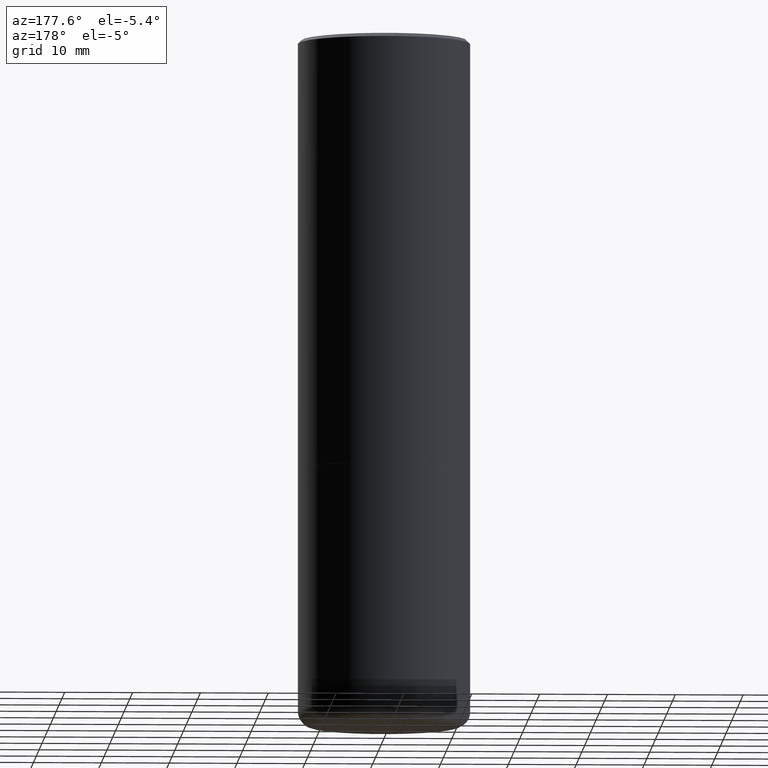
[diagram: clean part render]
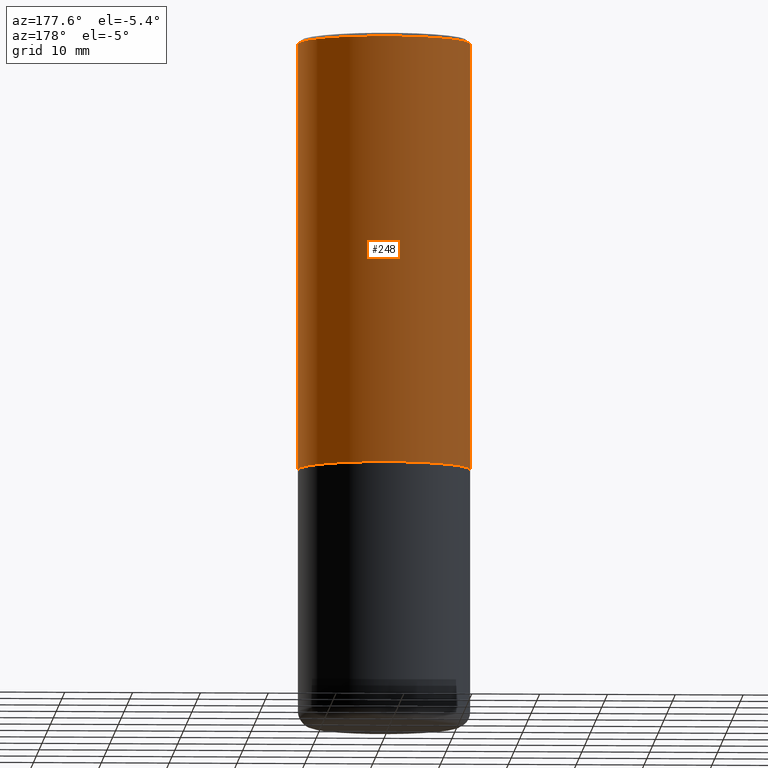
[diagram: same view with one face highlighted and labeled with its STEP entity id]
A machine part, auxiliary view. The second image highlights one B-rep face of the part: STEP entity #248.
In plain terms, the highlighted cylindrical surface (partial cylindrical patch) has radius 12.7 mm, axis along (-0, 0, 1).
Its self-contained STEP definition (entity closure, byte-faithful):
#19 = DIRECTION ( 'NONE',  ( 1.000000000000000000, -6.982962677686267499E-15, 4.876176775795936353E-29 ) ) ;
#24 = CARTESIAN_POINT ( 'NONE',  ( 0.4999999999999998335, -3.491481338843132566E-15, 2.438088387897967336E-29 ) ) ;
#37 = ORIENTED_EDGE ( 'NONE', *, *, #311, .T. ) ;
#42 = CIRCLE ( 'NONE', #285, 0.5000000000000000000 ) ;
#53 = EDGE_CURVE ( 'NONE', #391, #155, #396, .T. ) ;
#72 = DIRECTION ( 'NONE',  ( -2.445468806185136597E-29, 3.491481338843145583E-15, 1.000000000000000000 ) ) ;
#73 = CARTESIAN_POINT ( 'NONE',  ( 0.4999999999999996669, -3.500078625662626318E-15, -0.02000000000000002123 ) ) ;
#79 = CARTESIAN_POINT ( 'NONE',  ( -0.5000000000000000000, -8.448070674724403070E-16, -2.499000000000000110 ) ) ;
#83 = EDGE_CURVE ( 'NONE', #187, #155, #357, .T. ) ;
#115 = CARTESIAN_POINT ( 'NONE',  ( 0.000000000000000000, 0.000000000000000000, 0.000000000000000000 ) ) ;
#118 = ORIENTED_EDGE ( 'NONE', *, *, #53, .T. ) ;
#133 = AXIS2_PLACEMENT_3D ( 'NONE', #374, #378, #413 ) ;
#135 = CARTESIAN_POINT ( 'NONE',  ( -0.4999999999999996669, 3.421651712066268085E-15, -0.02000000000000002123 ) ) ;
#137 = DIRECTION ( 'NONE',  ( 1.000000000000000000, -6.982962677686265133E-15, 0.000000000000000000 ) ) ;
#142 = CARTESIAN_POINT ( 'NONE',  ( -0.4999999999999998335, 3.552713678800499746E-15, -2.459467545127452330E-29 ) ) ;
#155 = VERTEX_POINT ( 'NONE', #135 ) ;
#187 = VERTEX_POINT ( 'NONE', #73 ) ;
#223 = VECTOR ( 'NONE', #418, 39.37007874015748143 ) ;
#226 = VECTOR ( 'NONE', #274, 39.37007874015748143 ) ;
#236 = CARTESIAN_POINT ( 'NONE',  ( 6.111226546656657010E-29, -8.725211865769021935E-15, -2.499000000000000110 ) ) ;
#248 = ADVANCED_FACE ( 'NONE', ( #282 ), #421, .T. ) ;
#249 = DIRECTION ( 'NONE',  ( -2.445468806185136597E-29, 3.491481338843145583E-15, 1.000000000000000000 ) ) ;
#274 = DIRECTION ( 'NONE',  ( -2.445468806185136877E-29, 3.491481338843145188E-15, 1.000000000000000000 ) ) ;
#282 = FACE_OUTER_BOUND ( 'NONE', #362, .T. ) ;
#285 = AXIS2_PLACEMENT_3D ( 'NONE', #236, #72, #137 ) ;
#311 = EDGE_CURVE ( 'NONE', #360, #391, #42, .T. ) ;
#328 = ORIENTED_EDGE ( 'NONE', *, *, #83, .F. ) ;
#329 = CARTESIAN_POINT ( 'NONE',  ( 0.5000000000000000000, -1.221669320461215371E-14, -2.499000000000000110 ) ) ;
#353 = ORIENTED_EDGE ( 'NONE', *, *, #429, .F. ) ;
#357 = CIRCLE ( 'NONE', #133, 0.4999999999999996669 ) ;
#360 = VERTEX_POINT ( 'NONE', #329 ) ;
#362 = EDGE_LOOP ( 'NONE', ( #37, #118, #328, #353 ) ) ;
#374 = CARTESIAN_POINT ( 'NONE',  ( 4.890937612370278413E-31, -6.982962677686297772E-17, -0.02000000000000002123 ) ) ;
#378 = DIRECTION ( 'NONE',  ( -2.445468806185136597E-29, 3.491481338843145583E-15, 1.000000000000000000 ) ) ;
#388 = LINE ( 'NONE', #24, #223 ) ;
#391 = VERTEX_POINT ( 'NONE', #79 ) ;
#396 = LINE ( 'NONE', #142, #226 ) ;
#413 = DIRECTION ( 'NONE',  ( 1.000000000000000000, -6.982962677686266711E-15, 0.000000000000000000 ) ) ;
#418 = DIRECTION ( 'NONE',  ( -2.445468806185136877E-29, 3.491481338843145188E-15, 1.000000000000000000 ) ) ;
#421 = CYLINDRICAL_SURFACE ( 'NONE', #431, 0.4999999999999998335 ) ;
#429 = EDGE_CURVE ( 'NONE', #360, #187, #388, .T. ) ;
#431 = AXIS2_PLACEMENT_3D ( 'NONE', #115, #249, #19 ) ;